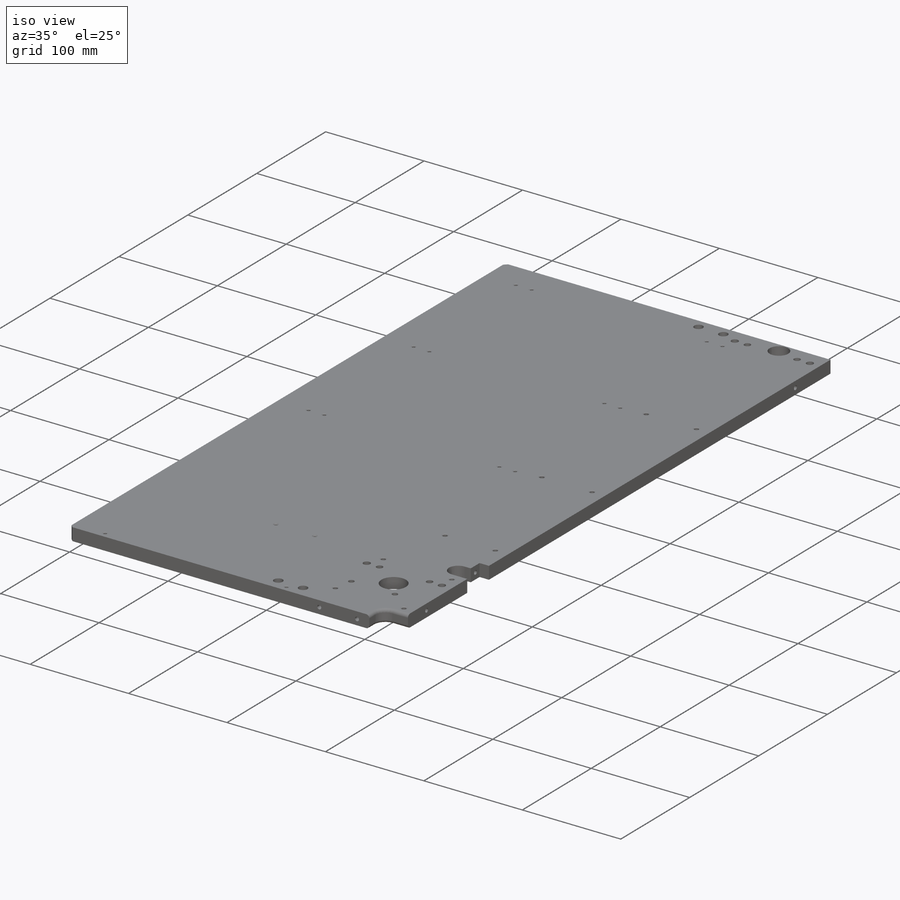
[diagram: iso view]
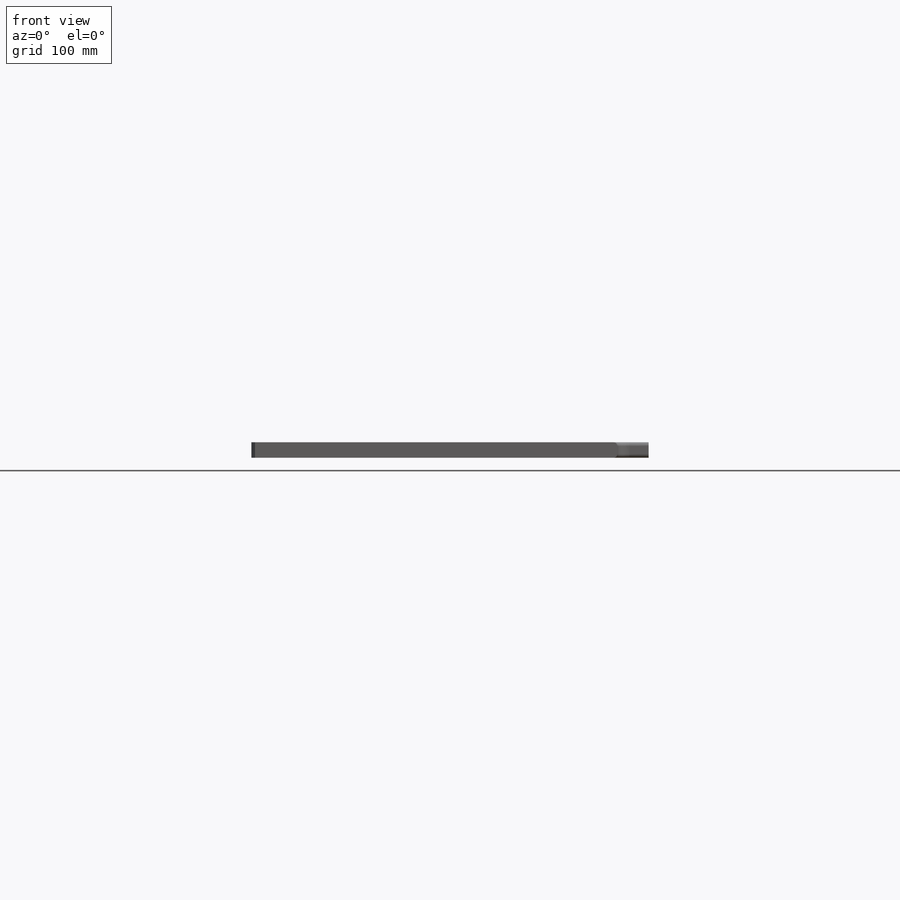
[diagram: front view]
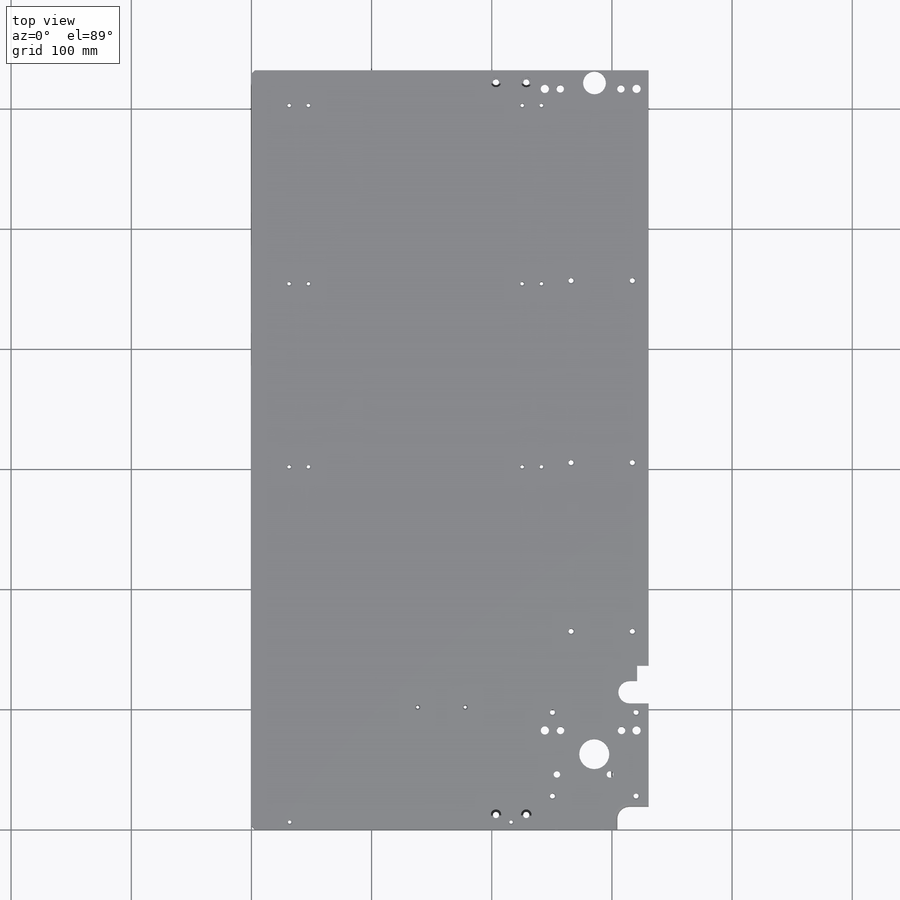
[diagram: top view]
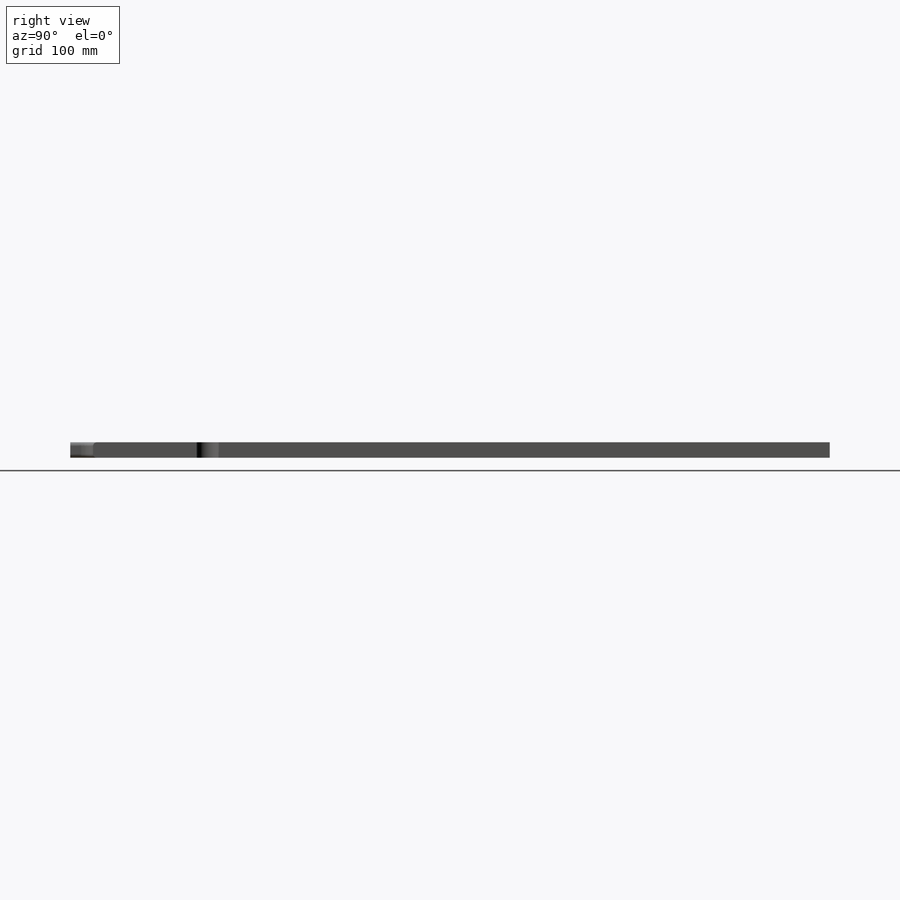
[diagram: right view]
SOLIDWORKS PART (.sldprt)
format: sldprt  version: not decoded by parser v0  size: 839,168 bytes
history: native  units: mm
features: sketch x18, cut_extrude x17, chamfer x6, material x1, extrude x1, fillet x1 (+16 scaffold rows collapsed)
feature tree (60):
  scaffold x16  (default folders/planes/origin — collapsed)
  material  "1060 Alloy"
  sketch  "Sketch1"  dims[D1=632.0mm D2=330.5mm]
  extrude  "Boss-Extrude1"  Depth=12.8mm
  sketch  "Sketch2"  dims[D1=10.0mm D2=19.0mm D3=26.0mm D4=31.5mm D5=18.7mm D6=9.55mm D7=25.17mm D8=105.0mm]
  cut_extrude  "Cut-Extrude1"  [1 undecoded]
  fillet  "Fillet1"  Radius=3mm
  sketch  "Sketch3"  dims[D2=2.9mm D1=6.3mm D3=31.8mm D4=216.1mm D5=302.0mm D6=454.4mm D7=602.8mm D8=31.4mm D9=47.4mm D10=225.3mm D11=241.3mm]
  cut_extrude  "Cut-Extrude2"  [1 undecoded]
  chamfer  "Chamfer1"  Distance=1mm Angle=30deg
  sketch  "Sketch4"  dims[D1=4.2mm D2=266.0mm D3=317.0mm D4=165.1mm D5=305.5mm D6=457.0mm]
  cut_extrude  "Cut-Extrude3"  [1 undecoded]
  chamfer  "Chamfer2"  Distance=1mm Angle=30deg
  sketch  "Sketch5"  dims[D1=25.0mm D2=4.2mm D3=69.6mm D4=28.0mm D5=250.5mm]
  cut_extrude  "Cut-Extrude4"  [1 undecoded]
  sketch  "Sketch6"  dims[D1=72.85mm]
  cut_extrude  "Cut-Extrude5"  Depth=1.7mm
  chamfer  "Chamfer3"  Distance=1mm Angle=30deg
  sketch  "Sketch7"  dims[c1.D4=5.4mm c1.D7=6.2mm c1.D8=6.85mm c1.D1=45.9mm c1.D2=254.2mm c1.D3=298.4mm c1.D5=257.2mm c1.D6=82.5mm c2.D7=~77.539131mm c2.D9=244.2mm c2.D10=308.0mm c2.D11=320.5mm]
  cut_extrude  "Cut-Extrude6"  [1 undecoded]
  sketch  "Sketch13"  dims[D1=8.8mm]
  cut_extrude  "Cut-Extrude12"  Depth=6.76mm
  sketch  "Sketch8"  dims[D2=19.02mm D1=621.5mm D3=276.0mm D4=295.02mm]
  cut_extrude  "Cut-Extrude7"  [1 undecoded]
  sketch  "Sketch9"  dims[c1.D4=5.2mm c1.D1=10.0mm c1.D2=203.5mm c1.D3=228.7mm c2.D4=~74.557544mm c2.D1=622.0mm c2.D5=12.25mm]
  cut_extrude  "Cut-Extrude8"  [1 undecoded]
  sketch  "Sketch10"  dims[D1=8.73mm D2=12.25mm]
  cut_extrude  "Cut-Extrude9"  Depth=5.58mm
  sketch  "Sketch11"  dims[D2=6.85mm D1=15.5mm D3=15.5mm D4=244.2mm D5=257.0mm D6=307.5mm D7=320.5mm]
  cut_extrude  "Cut-Extrude10"  [1 undecoded]
  sketch  "Sketch12"  dims[D1=12.3mm]
  cut_extrude  "Cut-Extrude11"  Depth=7.82mm
  sketch  "Sketch15"  dims[D4=2.7mm D1=101.9mm D2=138.3mm D3=177.9mm]
  cut_extrude  "Cut-Extrude13"  [1 undecoded]
  chamfer  "Chamfer4"  Distance=1mm Angle=45deg
  sketch  "Sketch16"  dims[D2=4.05mm D1=5.8mm D3=253.7mm D4=292.0mm]
  cut_extrude  "Cut-Extrude14"  Depth=14.56mm
  sketch  "Sketch17"  dims[D3=4.06mm D4=4.06mm D5=4.26mm D1=46.12mm D2=130.62mm D6=581.2mm D7=50.8mm]
  cut_extrude  "Cut-Extrude15"  Depth=15.24mm
  sketch  "Sketch18"  dims[D1=0.0mm]
  cut_extrude  "Cut-Extrude17"  Depth=15.24mm
  sketch  "Sketch19"  dims[D3=2.95mm D1=215.95mm D2=38.1mm]
  chamfer  "Chamfer5"  Distance=3mm
  cut_extrude  "Cut-Extrude18"  Depth=15.24mm
  chamfer  "Chamfer6"  Distance=1mm Angle=45deg
decode coverage: 34 of 43 modeling features carry decoded parameters
note: ~ marks probable driven/reference dimensions
note: 9 parameter values undecoded
summary: no parameter record found for 9 features
note: suppression state not decoded; provenance and decode notes live in map.json
